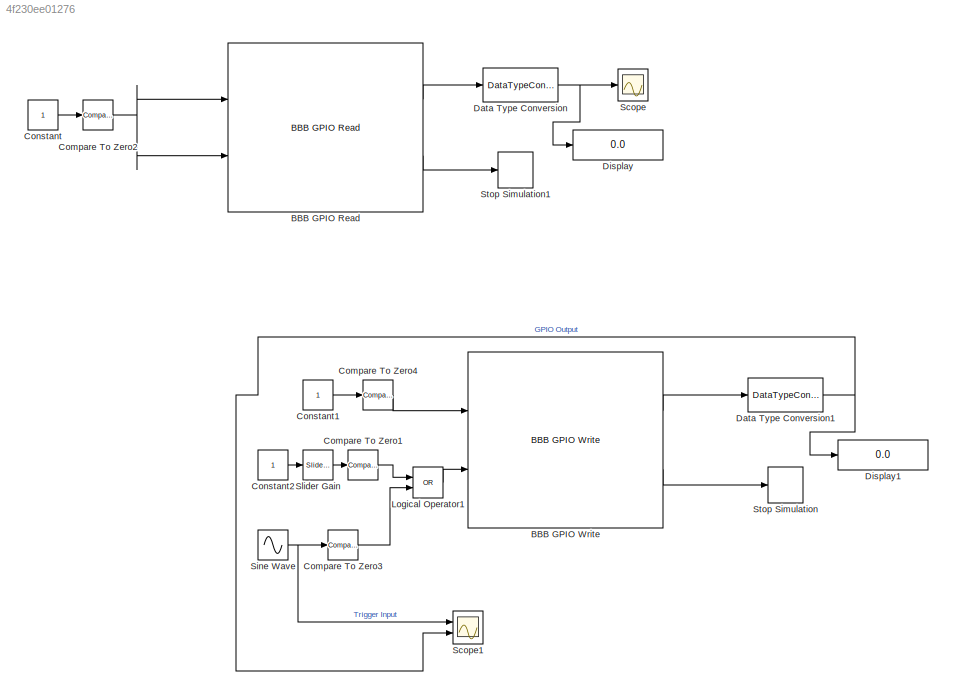
MODEL slx_4f230ee01276
KIND model
BLOCK [Reference] BBB GPIO Read  REF=BLACKlink/BBB GPIO Read
  BBB_DebugInfo = No Debug Info
  BBB_GPIOPin = Pin P9_23 -> GPIO[49]
  Ports = [2, 2]
  SourceBlock = BLACKlink/BBB GPIO Read
  SourceType = BLACKlink Album - BBB_Driver_GPIORead
BLOCK [Reference] BBB GPIO Write  REF=BLACKlink/BBB GPIO Write
  BBB_DebugInfo = Debug Level 0 - Basic Info Only
  BBB_GPIOPin = Pin P9_12 -> GPIO[60]
  Ports = [2, 2]
  SourceBlock = BLACKlink/BBB GPIO Write
  SourceType = BLACKlink Album - BBB_Driver_GPIOWrite
BLOCK [Reference] Compare To Zero1  REF=simulink/Logic and Bit
Operations/Compare
To Zero
  OutDataTypeStr = boolean
  Ports = [1, 1]
  SourceBlock = simulink/Logic and Bit\nOperations/Compare\nTo Zero
  SourceType = Compare To Zero
  ZeroCross = on
  relop = >
BLOCK [Reference] Compare To Zero2  REF=simulink/Logic and Bit
Operations/Compare
To Zero
  OutDataTypeStr = boolean
  Ports = [1, 1]
  SourceBlock = simulink/Logic and Bit\nOperations/Compare\nTo Zero
  SourceType = Compare To Zero
  ZeroCross = on
  relop = >
BLOCK [Reference] Compare To Zero3  REF=simulink/Logic and Bit
Operations/Compare
To Zero
  OutDataTypeStr = boolean
  Ports = [1, 1]
  SourceBlock = simulink/Logic and Bit\nOperations/Compare\nTo Zero
  SourceType = Compare To Zero
  ZeroCross = on
  relop = >
BLOCK [Reference] Compare To Zero4  REF=simulink/Logic and Bit
Operations/Compare
To Zero
  OutDataTypeStr = boolean
  Ports = [1, 1]
  SourceBlock = simulink/Logic and Bit\nOperations/Compare\nTo Zero
  SourceType = Compare To Zero
  ZeroCross = on
  relop = >
BLOCK [Constant] Constant
BLOCK [Constant] Constant1
BLOCK [Constant] Constant2
BLOCK [DataTypeConversion] Data Type Conversion
  RndMeth = Floor
  SaturateOnIntegerOverflow = off
BLOCK [DataTypeConversion] Data Type Conversion1
  RndMeth = Floor
  SaturateOnIntegerOverflow = off
BLOCK [Display] Display
  Decimation = 1
  Lockdown = off
  Ports = [1]
BLOCK [Display] Display1
  Decimation = 1
  Lockdown = off
  Ports = [1]
BLOCK [Logic] Logical Operator1
  AllPortsSameDT = off
  Operator = OR
  OutDataTypeStr = boolean
  Ports = [2, 1]
BLOCK [Scope] Scope
  DataFormat = StructureWithTime
  Floating = off
  NumInputPorts = 1
  Ports = [1]
  SampleTime = 0
  ShowLegends = off
  TimeRange = 30
BLOCK [Scope] Scope1
  DataFormat = StructureWithTime
  Floating = off
  LegendLocations = 0.6255     0.79282      0.2783    0.063542\n0.62301     0.38084     0.28066    0.063542
  NumInputPorts = 2
  Ports = [2]
  SampleTime = 0
  SaveName = ScopeData1
  ShowLegends = on
  YMax = 5~5
  YMin = -5~-5
BLOCK [Sin] Sine Wave
  Frequency = 4
  Ports = [0, 1]
BLOCK [Reference] Slider Gain  REF=simulink/Math
Operations/Slider
Gain
  Ports = [1, 1]
  SourceBlock = simulink/Math\nOperations/Slider\nGain
  SourceType = Slider Gain
  gain = 0
  high = 1
  low = 0
BLOCK [Stop] Stop Simulation
BLOCK [Stop] Stop Simulation1
LINE BBB GPIO Read:1 -> Data Type Conversion:1
LINE BBB GPIO Read:2 -> Stop Simulation1:1
LINE BBB GPIO Write:1 -> Data Type Conversion1:1
LINE BBB GPIO Write:2 -> Stop Simulation:1
LINE Compare To Zero1:1 -> Logical Operator1:1
NET Compare To Zero2:1 -> BBB GPIO Read:1, BBB GPIO Read:2
LINE Compare To Zero3:1 -> Logical Operator1:2
LINE Compare To Zero4:1 -> BBB GPIO Write:1
LINE Constant1:1 -> Compare To Zero4:1
LINE Constant2:1 -> Slider Gain:1
LINE Constant:1 -> Compare To Zero2:1
NET Data Type Conversion1:1 -> Display1:1, Scope1:2
NET Data Type Conversion:1 -> Display:1, Scope:1
LINE Logical Operator1:1 -> BBB GPIO Write:2
NET Sine Wave:1 -> Compare To Zero3:1, Scope1:1
LINE Slider Gain:1 -> Compare To Zero1:1
note: NET lines group one-source signal fan-out (src -> all destinations, sorted); 1:1 wires keep LINE
